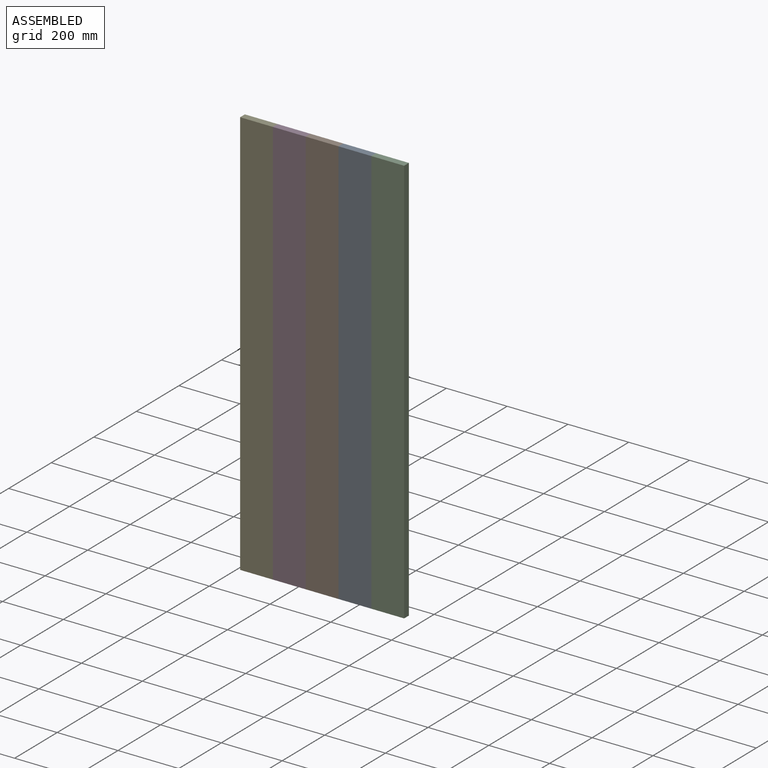
[diagram: assembled view]
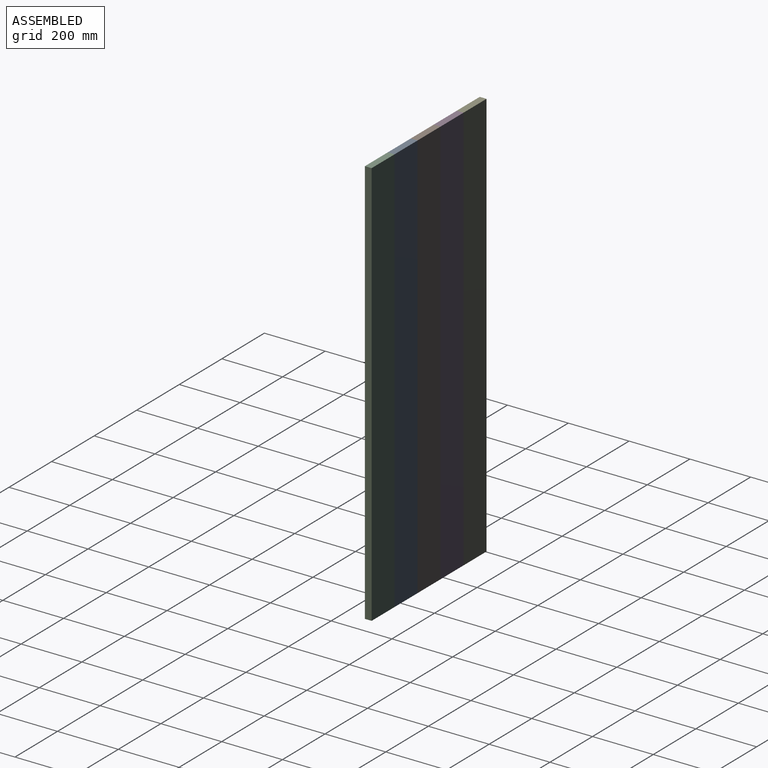
[diagram: assembled view, second angle]
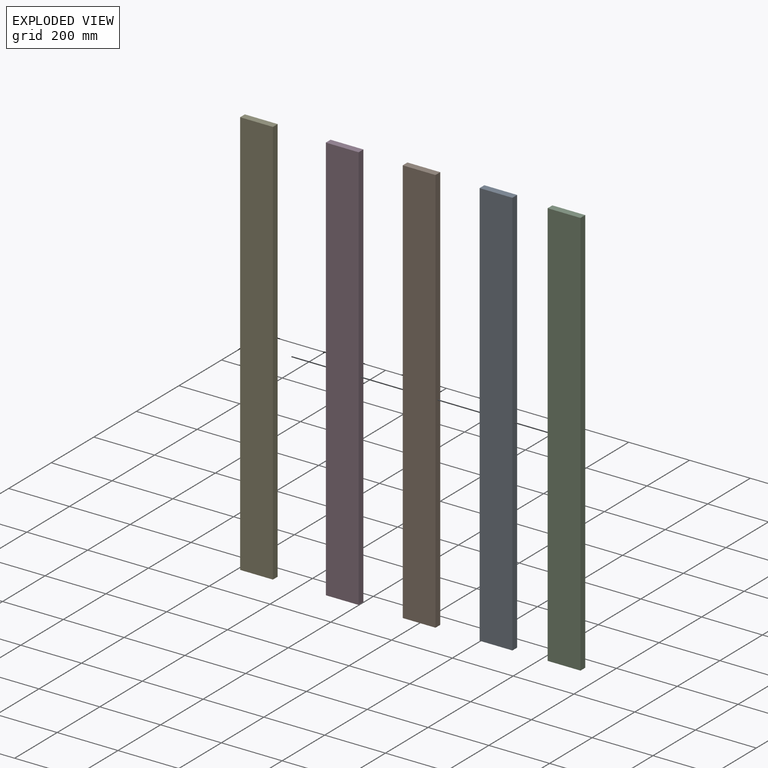
[diagram: exploded view]
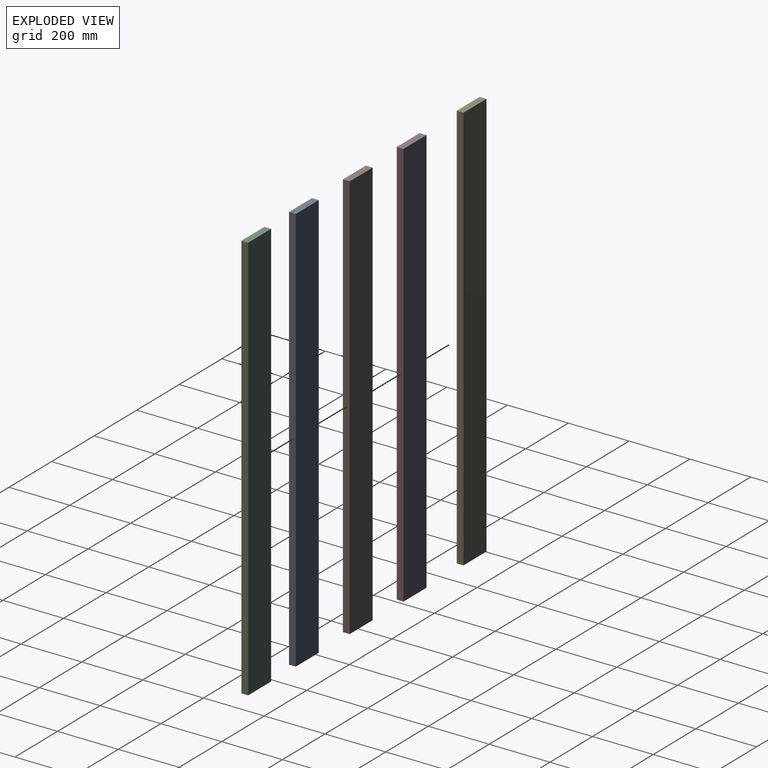
[diagram: exploded view, second angle]
ASSEMBLY  parts=5 mates=4
PART A: 6 faces, bbox 108x22.2x1346.2 mm
  f0: plane 1346.2x22.23mm, normal (-1,0,0), area 29919.3mm2, adj f1,f3,f4,f5
  f1: plane 1346.2x107.95mm, normal (0,-1,0), area 145322.3mm2, adj f0,f2,f4,f5
  f2: plane 1346.2x22.23mm, normal (1,0,0), area 29919.3mm2, adj f1,f3,f4,f5
  f3: plane 1346.2x107.95mm, normal (0,1,0), area 145322.3mm2, adj f0,f2,f4,f5
  f4: plane 107.95x22.23mm, normal (0,0,1), area 2399.2mm2, adj f0,f1,f2,f3
  f5: plane 107.95x22.23mm, normal (0,0,-1), area 2399.2mm2, adj f0,f1,f2,f3
PART B: same geometry as A
PART C: same geometry as A
PART D: same geometry as A
PART E: same geometry as A
PLACE A t=(13.64,-94.86,55.51)mm
PLACE B t=(-94.31,-94.86,55.51)mm
PLACE C t=(121.59,-94.86,55.51)mm
PLACE D t=(-202.26,-94.86,55.51)mm
PLACE E t=(-310.21,-94.86,55.51)mm
MATE fastened D.f2 <-> B.f0  axis (1,0,0) through (-148.29,-94.86,728.61)mm
MATE fastened C.f0 <-> A.f2  axis (-1,0,0) through (67.61,-94.86,728.61)mm
MATE fastened B.f2 <-> A.f0  axis (1,0,0) through (-40.34,-94.86,728.61)mm
MATE fastened E.f2 <-> D.f0  axis (1,0,0) through (-256.24,-94.86,728.61)mm
